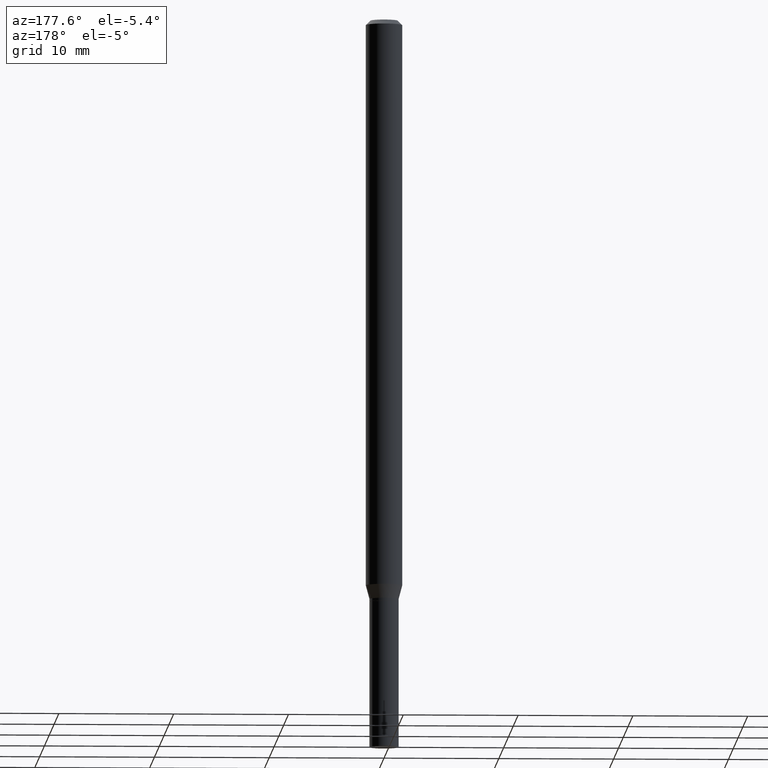
[diagram: clean part render]
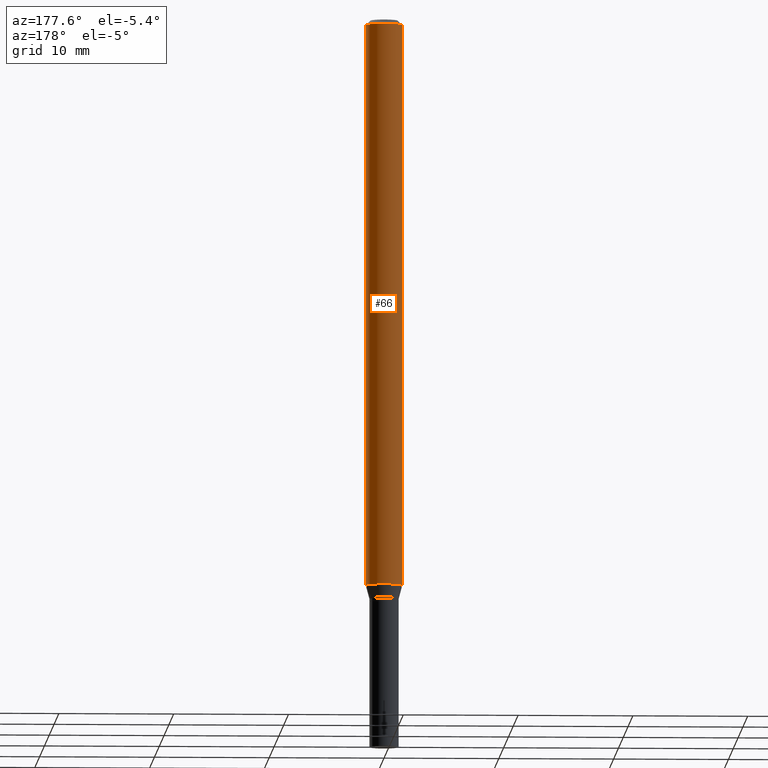
[diagram: same view with one face highlighted and labeled with its STEP entity id]
A machine part, auxiliary view. The second image highlights one B-rep face of the part: STEP entity #66.
In plain terms, the highlighted cylindrical surface (edge-blend (fillet) strip) has radius 1.5875 mm, axis along (-0, 0, 1).
Its self-contained STEP definition (entity closure, byte-faithful):
#4 = CARTESIAN_POINT ( 'NONE',  ( 0.000000000000000000, 0.000000000000000000, 0.000000000000000000 ) ) ;
#20 = EDGE_CURVE ( 'NONE', #105, #336, #206, .T. ) ;
#42 = DIRECTION ( 'NONE',  ( -2.445468806185136597E-29, 3.491481338843145583E-15, 1.000000000000000000 ) ) ;
#65 = LINE ( 'NONE', #145, #405 ) ;
#66 = ADVANCED_FACE ( 'NONE', ( #213 ), #260, .T. ) ;
#74 = CARTESIAN_POINT ( 'NONE',  ( -0.06250000000000000000, -6.341078832569778591E-15, -1.943349364905387899 ) ) ;
#90 = AXIS2_PLACEMENT_3D ( 'NONE', #353, #42, #188 ) ;
#105 = VERTEX_POINT ( 'NONE', #181 ) ;
#107 = CIRCLE ( 'NONE', #90, 0.06250000000000000000 ) ;
#111 = ORIENTED_EDGE ( 'NONE', *, *, #456, .T. ) ;
#135 = EDGE_LOOP ( 'NONE', ( #339, #111, #284, #380 ) ) ;
#140 = EDGE_CURVE ( 'NONE', #332, #461, #107, .T. ) ;
#142 = AXIS2_PLACEMENT_3D ( 'NONE', #224, #374, #257 ) ;
#145 = CARTESIAN_POINT ( 'NONE',  ( -0.06250000000000000000, 4.440892098500626162E-16, -3.074334431409316114E-30 ) ) ;
#181 = CARTESIAN_POINT ( 'NONE',  ( 0.06250000000000000000, -4.888073874380388472E-16, -0.01499999999999999944 ) ) ;
#183 = LINE ( 'NONE', #334, #259 ) ;
#185 = DIRECTION ( 'NONE',  ( -2.445468806185136877E-29, 3.491481338843145188E-15, 1.000000000000000000 ) ) ;
#188 = DIRECTION ( 'NONE',  ( 1.000000000000000000, -6.982962677686262766E-15, 0.000000000000000000 ) ) ;
#206 = CIRCLE ( 'NONE', #142, 0.06250000000000000000 ) ;
#213 = FACE_OUTER_BOUND ( 'NONE', #135, .T. ) ;
#224 = CARTESIAN_POINT ( 'NONE',  ( 3.668203209277705088E-31, -5.237222008264718399E-17, -0.01499999999999999944 ) ) ;
#257 = DIRECTION ( 'NONE',  ( 1.000000000000000000, -6.982962677686266711E-15, 0.000000000000000000 ) ) ;
#259 = VECTOR ( 'NONE', #285, 39.37007874015748143 ) ;
#260 = CYLINDRICAL_SURFACE ( 'NONE', #389, 0.06250000000000000000 ) ;
#274 = EDGE_CURVE ( 'NONE', #332, #105, #183, .T. ) ;
#284 = ORIENTED_EDGE ( 'NONE', *, *, #20, .F. ) ;
#285 = DIRECTION ( 'NONE',  ( -2.445468806185136877E-29, 3.491481338843145188E-15, 1.000000000000000000 ) ) ;
#330 = DIRECTION ( 'NONE',  ( 1.000000000000000000, -6.982962677686266711E-15, 4.876176775795935793E-29 ) ) ;
#332 = VERTEX_POINT ( 'NONE', #414 ) ;
#334 = CARTESIAN_POINT ( 'NONE',  ( 0.06250000000000000000, -4.364351673553916694E-16, 3.047610484872459871E-30 ) ) ;
#336 = VERTEX_POINT ( 'NONE', #418 ) ;
#339 = ORIENTED_EDGE ( 'NONE', *, *, #140, .T. ) ;
#353 = CARTESIAN_POINT ( 'NONE',  ( 4.752400251395822950E-29, -6.785168042419840419E-15, -1.943349364905387899 ) ) ;
#374 = DIRECTION ( 'NONE',  ( -2.445468806185136597E-29, 3.491481338843145583E-15, 1.000000000000000000 ) ) ;
#380 = ORIENTED_EDGE ( 'NONE', *, *, #274, .F. ) ;
#389 = AXIS2_PLACEMENT_3D ( 'NONE', #4, #440, #330 ) ;
#405 = VECTOR ( 'NONE', #185, 39.37007874015748143 ) ;
#414 = CARTESIAN_POINT ( 'NONE',  ( 0.06250000000000000000, -7.221603209775232877E-15, -1.943349364905387899 ) ) ;
#418 = CARTESIAN_POINT ( 'NONE',  ( -0.06250000000000000000, -2.974680921401181724E-15, -0.01499999999999999944 ) ) ;
#440 = DIRECTION ( 'NONE',  ( -2.445468806185136597E-29, 3.491481338843145583E-15, 1.000000000000000000 ) ) ;
#456 = EDGE_CURVE ( 'NONE', #461, #336, #65, .T. ) ;
#461 = VERTEX_POINT ( 'NONE', #74 ) ;